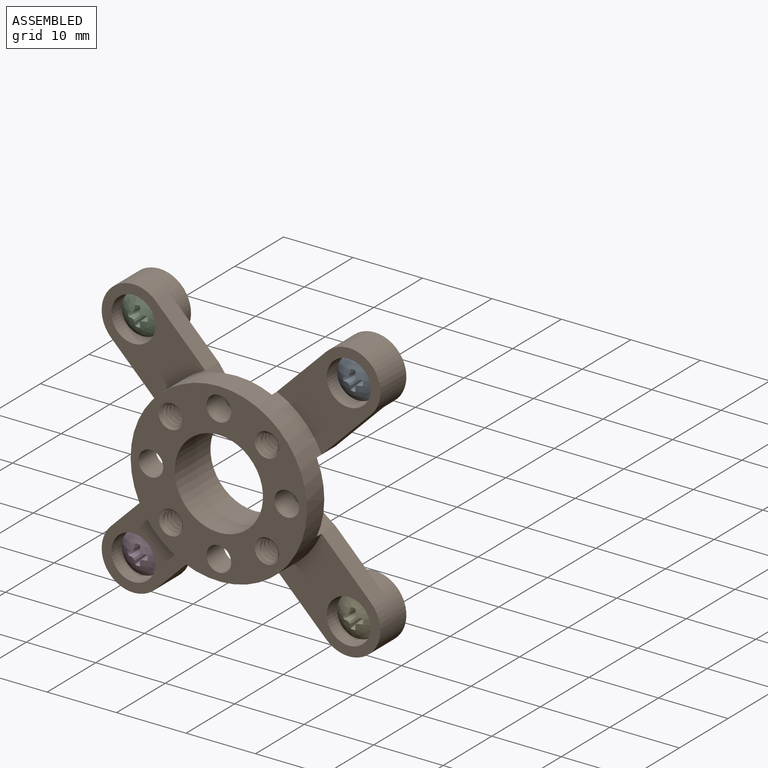
[diagram: assembled view]
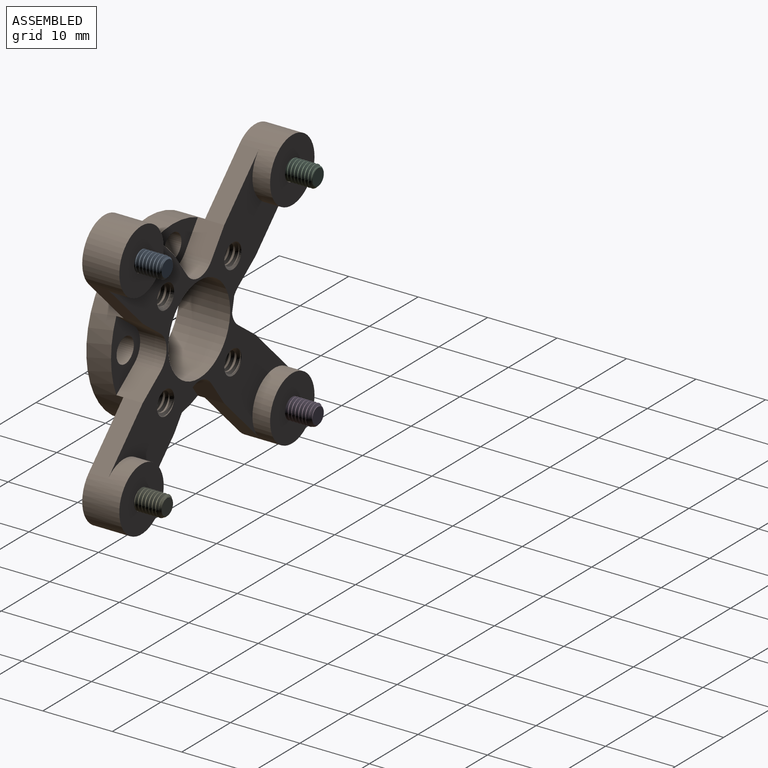
[diagram: assembled view, second angle]
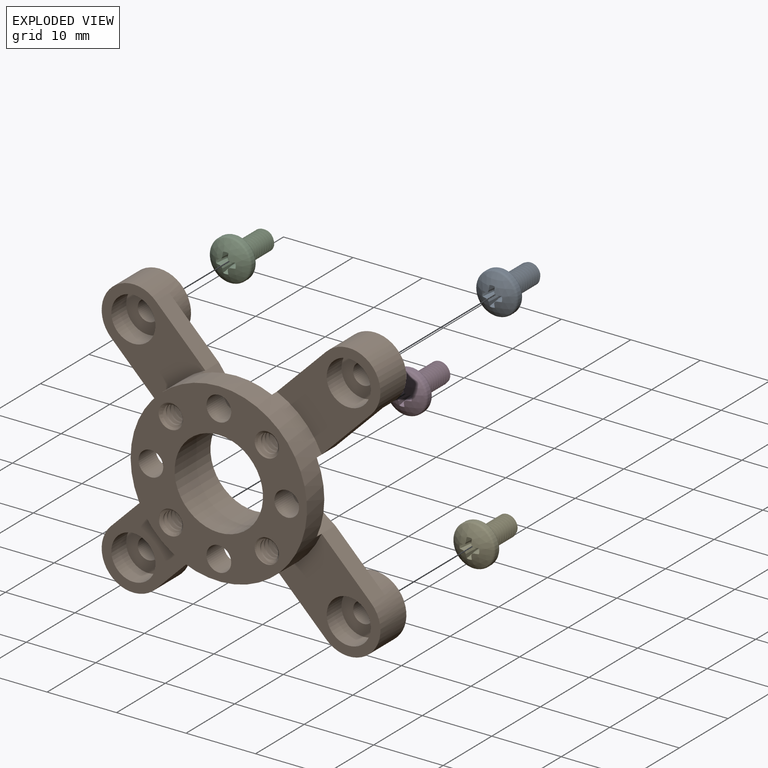
[diagram: exploded view]
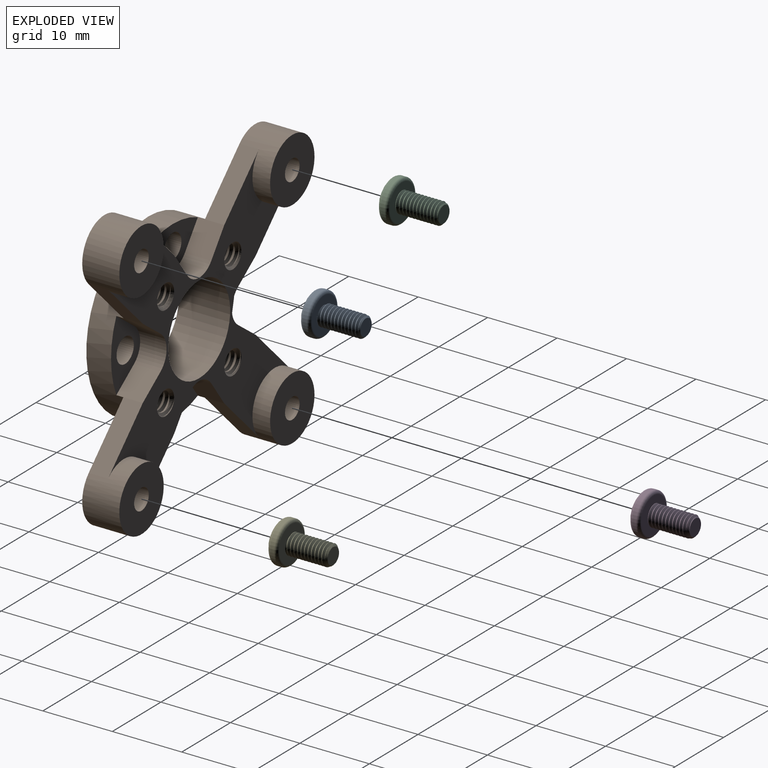
[diagram: exploded view, second angle]
ASSEMBLY  parts=5 mates=4
PART A: 33 faces, bbox 6.7x6.7x8.7 mm
  f0: cone r=1.5mm half-angle=15deg, axis (0,0,1), area 1.1mm2, adj f3,f19,f23,f24
  f1: cone r=1.5mm half-angle=15deg, axis (0,0,1), area 1.1mm2, adj f3,f18,f19,f20
  f2: torus R=2.57mm, axis (0,0,1), area 6.9mm2, adj f3,f4
  f3: sphere r=4.35mm, area 25.1mm2, adj f0,f1,f2,f14,f15,f16,f17,f18
  f4: cylinder r=3mm len=6mm, axis (0,0,-1), area 10.9mm2, adj f2,f5
  f5: torus R=2.57mm, axis (0,0,1), area 12.1mm2, adj f4,f9
  f6: cone r=4.35mm half-angle=45deg, axis (0,0,1), area 1.9mm2, adj f8,f10,f11,f12,f13
  f7: cylinder r=1.18mm len=6mm, axis (0,0,1), area 5.5mm2, adj f9,f10,f11,f12,f13
  f8: cylinder r=1.5mm len=5.68mm, axis (0,0,1), area 6.7mm2, adj f6,f9,f10,f11
  f9: plane 5.33x5.33mm, normal (0,0,-1), area 15.1mm2, adj f5,f7,f8,f10,f11
  f10: bspline ~6.16x3mm, area 36.5mm2, adj f6,f7,f8,f9,f12
  f11: bspline ~6.19x3mm, area 36.8mm2, adj f6,f7,f8,f9
  f12: bspline ~2.53x1.31mm, area 0.3mm2, adj f6,f7,f10
  f13: plane 2.35x2.35mm, normal (0,0,-1), area 4.3mm2, adj f6,f7
  f14: cone r=1.5mm half-angle=15deg, axis (0,0,1), area 1.1mm2, adj f3,f15,f19,f32
  f15: plane 1.96x0.68mm, normal (-1,0,0.09), area 0.8mm2, adj f3,f14,f16,f19
  f16: plane 1.98x0.38mm, normal (-0.92,-0.38,0.09), area 0.6mm2, adj f3,f15,f17,f19
  f17: plane 1.98x0.38mm, normal (-0.38,-0.92,0.09), area 0.6mm2, adj f3,f16,f18,f19
  f18: plane 1.96x0.68mm, normal (0,-1,0.09), area 0.8mm2, adj f1,f3,f17,f19
  f19: plane 1.91x1.91mm, normal (0,0,1), area 1.8mm2, adj f0,f1,f14,f15,f16,f17,f18,f20
  f20: plane 1.96x0.68mm, normal (0,1,0.09), area 0.8mm2, adj f1,f3,f19,f21
  f21: plane 1.98x0.38mm, normal (-0.38,0.92,0.09), area 0.6mm2, adj f3,f19,f20,f22
  f22: plane 1.98x0.38mm, normal (-0.92,0.38,0.09), area 0.6mm2, adj f3,f19,f21,f23
  f23: plane 1.96x0.68mm, normal (-1,0,0.09), area 0.8mm2, adj f0,f3,f19,f22
  f24: plane 1.96x0.68mm, normal (1,0,0.09), area 0.8mm2, adj f0,f3,f19,f25
  f25: plane 1.98x0.38mm, normal (0.92,0.38,0.09), area 0.6mm2, adj f3,f19,f24,f26
  f26: plane 1.98x0.38mm, normal (0.38,0.92,0.09), area 0.6mm2, adj f3,f19,f25,f27
  f27: plane 1.96x0.68mm, normal (0,1,0.09), area 0.8mm2, adj f3,f19,f26,f28
  f28: cone r=1.5mm half-angle=15deg, axis (0,0,1), area 1.1mm2, adj f3,f19,f27,f29
  f29: plane 1.96x0.68mm, normal (0,-1,0.09), area 0.8mm2, adj f3,f19,f28,f30
  f30: plane 1.98x0.38mm, normal (0.38,-0.92,0.09), area 0.6mm2, adj f3,f19,f29,f31
  f31: plane 1.98x0.38mm, normal (0.92,-0.38,0.09), area 0.6mm2, adj f3,f19,f30,f32
  f32: plane 1.96x0.68mm, normal (1,0,0.09), area 0.8mm2, adj f3,f14,f19,f31
PART B: 80 faces, bbox 40.1x10.2x40.1 mm
  f0: cylinder r=1.75mm len=7.37mm, axis (0,-1,0), area 10.1mm2, adj f43,f44,f78,f79
  f1: cylinder r=1.75mm len=7.37mm, axis (0,-1,0), area 10.1mm2, adj f43,f44,f76,f77
  f2: cylinder r=1.75mm len=7.37mm, axis (0,-1,0), area 10.1mm2, adj f43,f44,f74,f75
  f3: cylinder r=1.75mm len=7.37mm, axis (0,-1,0), area 10.1mm2, adj f43,f44,f72,f73
  f4: cylinder r=1.5mm len=3mm, axis (0,-1,0), area 21.5mm2, adj f47,f68
  f5: cylinder r=1.5mm len=3mm, axis (0,-1,0), area 21.5mm2, adj f46,f69
  f6: cylinder r=1.5mm len=3mm, axis (0,-1,0), area 21.5mm2, adj f45,f70
  f7: cylinder r=1.5mm len=3mm, axis (0,-1,0), area 21.5mm2, adj f48,f71
  f8: cylinder r=3.17mm len=6.35mm, axis (0,-1,0), area 60.8mm2, adj f66,f71
  f9: cylinder r=3.17mm len=6.35mm, axis (0,-1,0), area 60.8mm2, adj f65,f70
  f10: cylinder r=3.17mm len=6.35mm, axis (0,-1,0), area 60.8mm2, adj f64,f69
  f11: cylinder r=3.17mm len=6.35mm, axis (0,-1,0), area 60.8mm2, adj f67,f68
  f12: cylinder r=3.07mm len=4.94mm, axis (0,1,0), area 21.9mm2, adj f43,f57,f58,f59
  f13: cylinder r=6.36mm len=12.73mm, axis (0,1,0), area 294.5mm2, adj f43,f44
  f14: cylinder r=1.78mm len=3.56mm, axis (0,1,0), area 39.7mm2, adj f44,f49
  f15: cylinder r=1.78mm len=3.56mm, axis (0,1,0), area 39.7mm2, adj f44,f53
  f16: cylinder r=1.78mm len=3.56mm, axis (0,1,0), area 39.7mm2, adj f44,f57
  f17: cylinder r=1.78mm len=3.56mm, axis (0,1,0), area 39.7mm2, adj f44,f60
  f18: cylinder r=12.7mm len=25.39mm, axis (0,-1,0), area 321.6mm2, adj f44,f49,f51,f52,f53,f55,f56,f57
  f19: cylinder r=4.57mm len=9.13mm, axis (0,-1,0), area 112.9mm2, adj f41,f42,f43,f46,f64
  f20: cylinder r=4.57mm len=9.13mm, axis (0,-1,0), area 112.9mm2, adj f39,f40,f43,f45,f65
  f21: cylinder r=4.57mm len=9.13mm, axis (0,-1,0), area 112.9mm2, adj f37,f38,f43,f48,f66
  f22: cylinder r=4.57mm len=9.13mm, axis (0,-1,0), area 112.9mm2, adj f35,f36,f43,f47,f67
  f23: cone r=1.75mm half-angle=45deg, axis (0,-1,0), area 3.3mm2, adj f25,f44,f72,f73
  f24: cone r=1.75mm half-angle=45deg, axis (0,1,0), area 3.3mm2, adj f25,f43,f72,f73
  f25: cylinder r=1.35mm len=6.57mm, axis (0,1,0), area 16.4mm2, adj f23,f24,f72,f73
  f26: cone r=1.75mm half-angle=45deg, axis (0,-1,0), area 3.3mm2, adj f34,f44,f74,f75
  f27: cone r=1.75mm half-angle=45deg, axis (0,1,0), area 3.3mm2, adj f34,f43,f74,f75
  f28: cone r=1.75mm half-angle=45deg, axis (0,-1,0), area 3.3mm2, adj f32,f44,f76,f77
  f29: cone r=1.75mm half-angle=45deg, axis (0,1,0), area 3.3mm2, adj f32,f43,f76,f77
  f30: cone r=1.75mm half-angle=45deg, axis (0,-1,0), area 3.3mm2, adj f33,f44,f78,f79
  f31: cone r=1.75mm half-angle=45deg, axis (0,1,0), area 3.3mm2, adj f33,f43,f78,f79
  f32: cylinder r=1.35mm len=6.57mm, axis (0,1,0), area 16.4mm2, adj f28,f29,f76,f77
  f33: cylinder r=1.35mm len=6.57mm, axis (0,1,0), area 16.4mm2, adj f30,f31,f78,f79
  f34: cylinder r=1.35mm len=6.57mm, axis (0,1,0), area 16.4mm2, adj f26,f27,f74,f75
  f35: plane 7.12x7.12mm, normal (0.71,0,-0.71), area 28.1mm2, adj f22,f43,f58,f67
  f36: plane 7.12x7.12mm, normal (-0.71,0,0.71), area 28.1mm2, adj f22,f43,f56,f67
  f37: plane 7.12x7.12mm, normal (0.71,0,0.71), area 28.1mm2, adj f21,f43,f62,f66
  f38: plane 7.12x7.12mm, normal (-0.71,0,-0.71), area 28.1mm2, adj f21,f43,f59,f66
  f39: plane 7.12x7.12mm, normal (-0.71,0,0.71), area 28.1mm2, adj f20,f43,f51,f65
  f40: plane 7.12x7.12mm, normal (0.71,0,-0.71), area 28.1mm2, adj f20,f43,f63,f65
  f41: plane 7.12x7.12mm, normal (-0.71,0,-0.71), area 28.1mm2, adj f19,f43,f55,f64
  f42: plane 7.12x7.12mm, normal (0.71,0,0.71), area 28.1mm2, adj f19,f43,f52,f64
  f43: plane 37.46x37.46mm, normal (0,1,0), area 398.3mm2, adj f0,f1,f2,f3,f12,f13,f19,f20
  f44: plane 25.39x25.39mm, normal (0,-1,0), area 300.9mm2, adj f0,f1,f2,f3,f13,f14,f15,f16
  f45: plane 9.13x9.13mm, normal (0,1,0), area 58.4mm2, adj f6,f20
  f46: plane 9.13x9.13mm, normal (0,1,0), area 58.4mm2, adj f5,f19
  f47: plane 9.13x9.13mm, normal (0,1,0), area 58.4mm2, adj f4,f22
  f48: plane 9.13x9.13mm, normal (0,1,0), area 58.4mm2, adj f7,f21
  f49: plane 10.3x5.98mm, normal (0,1,0), area 29.7mm2, adj f14,f18,f50,f51,f52
  f50: cylinder r=3.07mm len=4.94mm, axis (0,1,0), area 21.9mm2, adj f43,f49,f51,f52
  f51: plane 3.81x3.64mm, normal (-0.81,0,0.59), area 17.2mm2, adj f18,f39,f43,f49,f50
  f52: plane 3.81x3.64mm, normal (0.81,0,0.59), area 17.2mm2, adj f18,f42,f43,f49,f50
  f53: plane 10.3x5.98mm, normal (0,1,0), area 29.7mm2, adj f15,f18,f54,f55,f56
  f54: cylinder r=3.07mm len=4.94mm, axis (0,1,0), area 21.9mm2, adj f43,f53,f55,f56
  f55: plane 3.81x3.64mm, normal (-0.59,0,-0.81), area 17.2mm2, adj f18,f41,f43,f53,f54
  f56: plane 3.81x3.64mm, normal (-0.59,0,0.81), area 17.2mm2, adj f18,f36,f43,f53,f54
  f57: plane 10.3x5.98mm, normal (0,1,0), area 29.7mm2, adj f12,f16,f18,f58,f59
  f58: plane 3.81x3.64mm, normal (0.81,0,-0.59), area 17.2mm2, adj f12,f18,f35,f43,f57
  f59: plane 3.81x3.64mm, normal (-0.81,0,-0.59), area 17.2mm2, adj f12,f18,f38,f43,f57
  f60: plane 10.3x5.98mm, normal (0,1,0), area 29.7mm2, adj f17,f18,f61,f62,f63
  f61: cylinder r=3.07mm len=4.94mm, axis (0,1,0), area 21.9mm2, adj f43,f60,f62,f63
  f62: plane 3.81x3.64mm, normal (0.59,0,0.81), area 17.2mm2, adj f18,f37,f43,f60,f61
  f63: plane 3.81x3.64mm, normal (0.59,0,-0.81), area 17.2mm2, adj f18,f40,f43,f60,f61
  f64: plane 14.92x14.92mm, normal (0,-1,0), area 87.9mm2, adj f10,f18,f19,f41,f42
  f65: plane 14.92x14.92mm, normal (0,-1,0), area 87.9mm2, adj f9,f18,f20,f39,f40
  f66: plane 14.92x14.92mm, normal (0,-1,0), area 87.9mm2, adj f8,f18,f21,f37,f38
  f67: plane 14.92x14.92mm, normal (0,-1,0), area 87.9mm2, adj f11,f18,f22,f35,f36
  f68: plane 6.35x6.35mm, normal (0,-1,0), area 24.6mm2, adj f4,f11
  f69: plane 6.35x6.35mm, normal (0,-1,0), area 24.6mm2, adj f5,f10
  f70: plane 6.35x6.35mm, normal (0,-1,0), area 24.6mm2, adj f6,f9
  f71: plane 6.35x6.35mm, normal (0,-1,0), area 24.6mm2, adj f7,f8
  f72: bspline ~7.66x3.95mm, area 39.7mm2, adj f3,f23,f24,f25
  f73: bspline ~7.66x3.95mm, area 39.7mm2, adj f3,f23,f24,f25
  f74: bspline ~7.66x3.95mm, area 39.7mm2, adj f2,f26,f27,f34
  f75: bspline ~7.66x3.95mm, area 39.7mm2, adj f2,f26,f27,f34
  f76: bspline ~7.66x3.95mm, area 39.7mm2, adj f1,f28,f29,f32
  f77: bspline ~7.66x3.95mm, area 39.7mm2, adj f1,f28,f29,f32
  f78: bspline ~7.66x3.95mm, area 39.7mm2, adj f0,f30,f31,f33
  f79: bspline ~7.66x3.95mm, area 39.7mm2, adj f0,f30,f31,f33
PART C: same geometry as A
PART D: same geometry as A
PART E: same geometry as A
PLACE A rot(axis=(0.58,0.58,-0.58),120deg) t=(-5.5,56.06,26.23)mm
PLACE B t=(-21,42.44,10.73)mm
PLACE C rot(axis=(1,0,0),90deg) t=(-36.5,56.06,26.29)mm
PLACE D rot(axis=(0.58,-0.58,0.58),120deg) t=(-36.5,56.06,-4.77)mm
PLACE E rot(axis=(0,0.71,-0.71),180deg) t=(-5.5,56.06,-4.77)mm
MATE fastened D.f2 <-> B.f4  axis (0,-1,0) through (-36.5,50.06,-4.77)mm
MATE fastened E.f1 <-> B.f7  axis (0,1,0) through (-5.5,50.06,-4.77)mm
MATE fastened C.f9 <-> B.f5  axis (0,1,0) through (-36.5,50.06,26.23)mm
MATE fastened A.f1 <-> B.f6  axis (0,1,0) through (-5.5,50.06,26.23)mm
